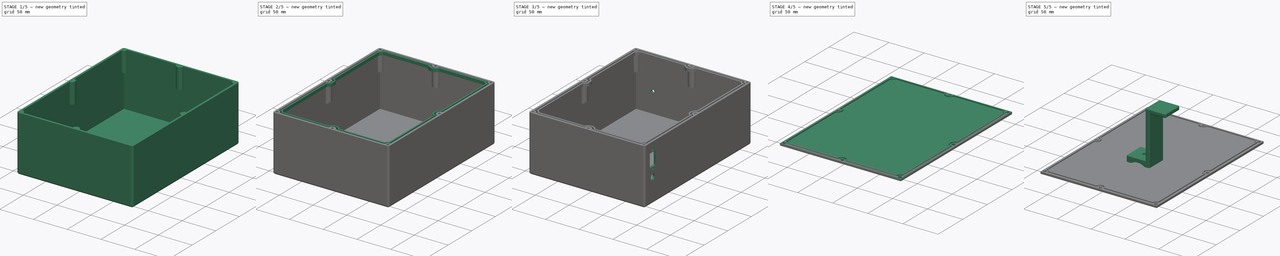
[diagram: build sequence overview — one tinted view per stage of 5, left to right]
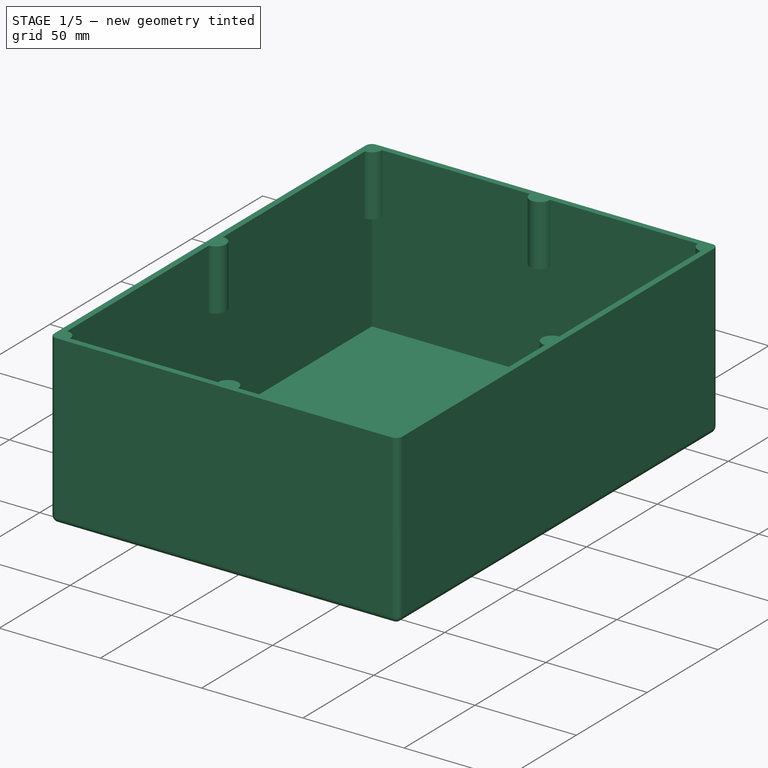
[diagram: stage 1 of 5 — iso view after this stage's code; geometry added in this stage tinted green]
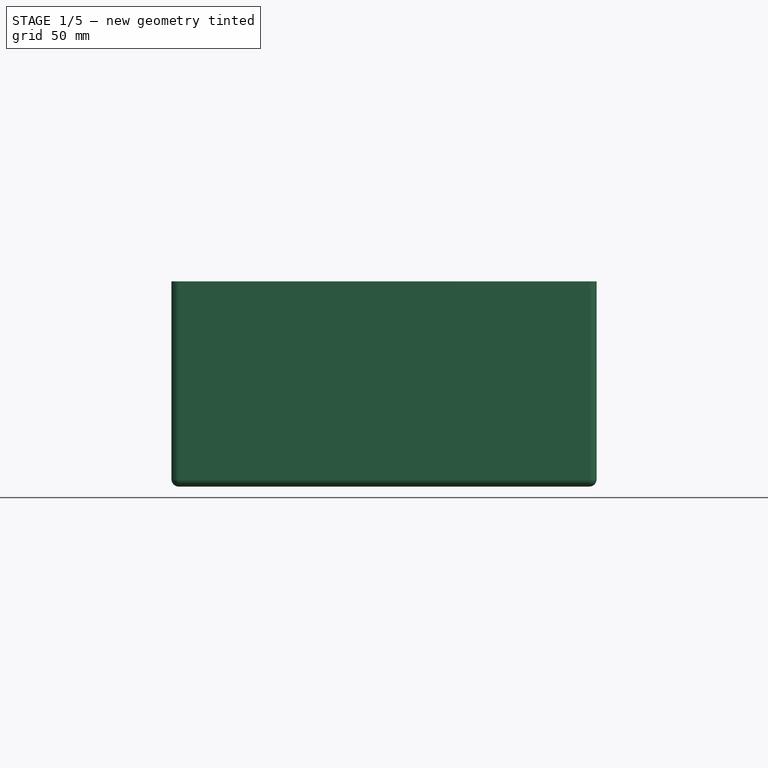
[diagram: stage 1 of 5 — front view after this stage's code; geometry added in this stage tinted green]
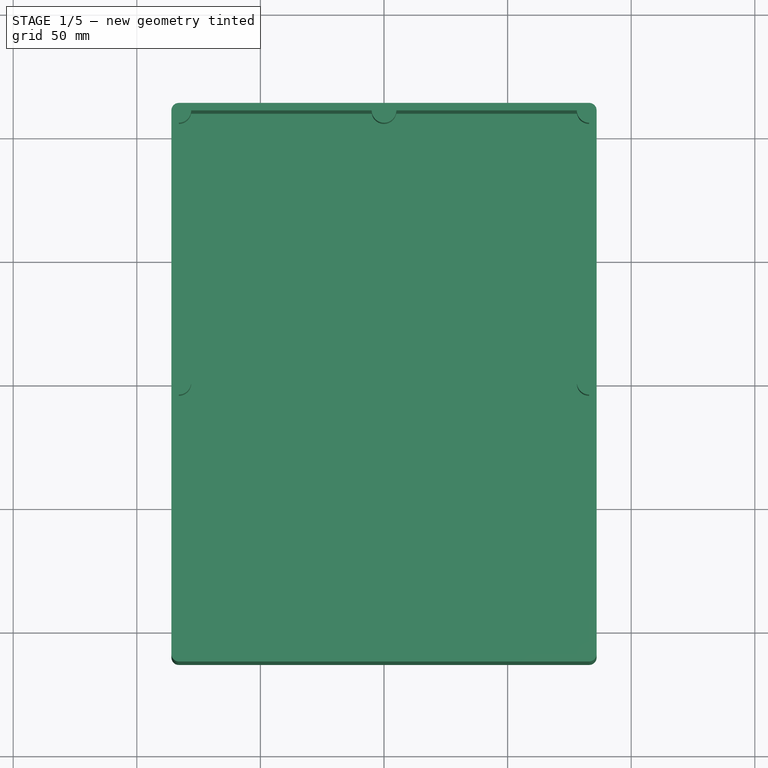
[diagram: stage 1 of 5 — top view after this stage's code; geometry added in this stage tinted green]
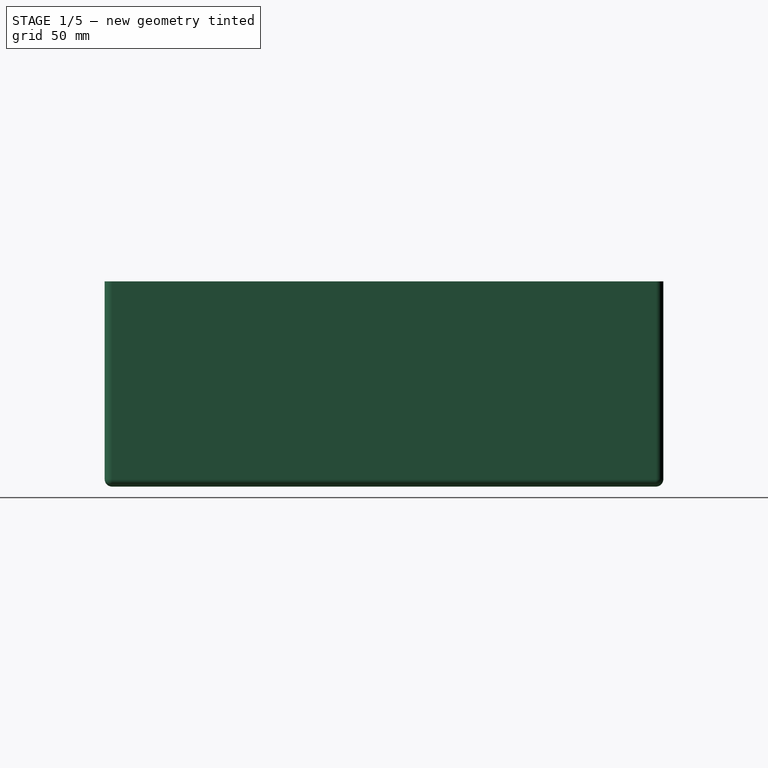
[diagram: stage 1 of 5 — right view after this stage's code; geometry added in this stage tinted green]
FCSTD DOCUMENT  (FreeCAD 1.0RUnknown)
Label: 10s8p
License: All rights reserved
LicenseURL: https://en.wikipedia.org/wiki/All_rights_reserved
objects: Sketcher::SketchObject×14, PartDesign::SubShapeBinder×5, PartDesign::Pad×4, PartDesign::Hole×3, PartDesign::Body×3, PartDesign::Pocket×3, App::VarSet×2, PartDesign::AdditivePipe×2, PartDesign::Thickness×1, PartDesign::Chamfer×1, PartDesign::SubtractivePipe×1
note: 81 computed .brp shape members not serialized (recipe doc carries the construction recipe); baked Part::Feature solids carry a one-line shape summary decoded from their .brp

FEATURE [App::VarSet] VarSet  label="dim"
  depth = 80
  external_width = 172
  height = 220
  lid_thk = 3
  thk = 3
  tol = 0.5
  width = 166
  expr: width = external_width - 2 * thk
FEATURE [Sketcher::SketchObject] Sketch002
  ArcFitTolerance = 1e-06
  AttachmentSupport = -> [XY_Plane]
  FullyConstrained = true
  MakeInternals = false
  MapMode = 5
  expr: Constraints[10] = VarSet.width
  expr: Constraints[11] = VarSet.height
  sketch-geometry (5):
    g0: LineSegment StartX=-83 StartY=110 StartZ=0 EndX=-83 EndY=-110 EndZ=0
    g1: LineSegment StartX=-83 StartY=-110 StartZ=0 EndX=83 EndY=-110 EndZ=0
    g2: LineSegment StartX=83 StartY=-110 StartZ=0 EndX=83 EndY=110 EndZ=0
    g3: LineSegment StartX=83 StartY=110 StartZ=0 EndX=-83 EndY=110 EndZ=0
    g4: GeomPoint [constr] X=0 Y=0 Z=0
  constraints (12):
    c: Coincident(g0,g1)
    c: Coincident(g1,g2)
    c: Coincident(g2,g3)
    c: Coincident(g3,g0)
    c: Vertical(g0)
    c: Vertical(g2)
    c: Horizontal(g1)
    c: Horizontal(g3)
    c: Symmetric(g2,g0,g4)
    c: Coincident(g4,g-1)
    c: DistanceX(g3,g3) = 166
    c: DistanceY(g2,g2) = 220
FEATURE [PartDesign::Pad] Pad
  Direction = (0,0,1)
  Length = 80
  Length2 = 10
  Profile = -> Sketch002
  ReferenceAxis = -> Sketch002 [N_Axis]
  Refine = true
  Suppressed = false
  Type = 0
  expr: Length = VarSet.depth
FEATURE [PartDesign::Thickness] Thickness
  Base = -> Pad [Face6]
  BaseFeature = -> Pad
  Intersection = false
  Join = 0
  Mode = 0
  Refine = true
  SupportTransform = false
  Suppressed = false
  Value = 3
  expr: Value = VarSet.thk
FEATURE [PartDesign::Body] Body002  label="bracket"
  AllowCompound = false
  Group = -> [Sketch003,Pad003,Sketch004,Hole,Chamfer001]
  Origin = -> Origin002
  Tip = -> Chamfer001
FEATURE [Sketcher::SketchObject] Sketch006
  ArcFitTolerance = 1e-06
  AttachmentOffset = pos=(0,0,80) rot=(0,0,1;0rad)
  AttachmentSupport = -> [XY_Plane]
  ExternalGeometry = -> [Sketch002]
  FullyConstrained = true
  MakeInternals = false
  MapMode = 5
  Placement = pos=(0,0,80) rot=(0,0,1;0rad)
  expr: .AttachmentOffset.Base.z = Pad.Length
  sketch-geometry (24):
    g0: ArcOfCircle CenterX=-83 CenterY=110 CenterZ=0 NormalX=0 NormalY=0 NormalZ=1 AngleXU=0 Radius=5 StartAngle=4.71239 EndAngle=6.28319
    g1: LineSegment StartX=-83 StartY=105 StartZ=0 EndX=-83 EndY=110 EndZ=0
    g2: LineSegment StartX=-83 StartY=110 StartZ=0 EndX=-78 EndY=110 EndZ=0
    g3: ArcOfCircle CenterX=83 CenterY=110 CenterZ=0 NormalX=0 NormalY=0 NormalZ=1 AngleXU=0 Radius=5 StartAngle=3.14159 EndAngle=4.71239
    g4: ArcOfCircle CenterX=-83 CenterY=-110 CenterZ=0 NormalX=0 NormalY=0 NormalZ=1 AngleXU=0 Radius=5 StartAngle=0 EndAngle=1.5708
    g5: ArcOfCircle CenterX=83 CenterY=-110 CenterZ=0 NormalX=0 NormalY=0 NormalZ=1 AngleXU=0 Radius=5 StartAngle=1.5708 EndAngle=3.14159
    g6: LineSegment StartX=-83 StartY=-110 StartZ=0 EndX=-83 EndY=-105 EndZ=0
    g7: LineSegment StartX=-83 StartY=-110 StartZ=0 EndX=-78 EndY=-110 EndZ=0
    g8: LineSegment StartX=78 StartY=-110 StartZ=0 EndX=83 EndY=-110 EndZ=0
    g9: LineSegment StartX=83 StartY=-110 StartZ=0 EndX=83 EndY=-105 EndZ=0
    g10: LineSegment StartX=83 StartY=110 StartZ=0 EndX=83 EndY=105 EndZ=0
    g11: LineSegment StartX=83 StartY=110 StartZ=0 EndX=78 EndY=110 EndZ=0
    g12: GeomPoint X=0 Y=-110 Z=0
    g13: GeomPoint X=0 Y=110 Z=0
    g14: GeomPoint X=-83 Y=0 Z=0
    g15: GeomPoint X=83 Y=0 Z=0
    g16: ArcOfCircle CenterX=0 CenterY=-110 CenterZ=0 NormalX=0 NormalY=0 NormalZ=1 AngleXU=0 Radius=5 StartAngle=8e-16 EndAngle=3.14159
    g17: ArcOfCircle CenterX=-83 CenterY=0 CenterZ=0 NormalX=0 NormalY=0 NormalZ=1 AngleXU=0 Radius=5 StartAngle=4.71239 EndAngle=7.85398
    g18: ArcOfCircle CenterX=83 CenterY=0 CenterZ=0 NormalX=0 NormalY=0 NormalZ=1 AngleXU=0 Radius=5 StartAngle=1.5708 EndAngle=4.71239
    g19: ArcOfCircle CenterX=0 CenterY=110 CenterZ=0 NormalX=0 NormalY=0 NormalZ=1 AngleXU=0 Radius=5 StartAngle=3.14159 EndAngle=6.28319
    g20: LineSegment StartX=-5 StartY=110 StartZ=0 EndX=5 EndY=110 EndZ=0
    g21: LineSegment StartX=83 StartY=5 StartZ=0 EndX=83 EndY=-5 EndZ=0
    g22: LineSegment StartX=-83 StartY=5 StartZ=0 EndX=-83 EndY=-5 EndZ=0
    g23: LineSegment StartX=-5 StartY=-110 StartZ=0 EndX=5 EndY=-110 EndZ=0
  constraints (64):
    c: Coincident(g0,g-3)
    c: Coincident(g2,g0)
    c: Coincident(g2,g0)
    c: Radius(g0) = 5
    c: Coincident(g1,g0)
    c: Coincident(g1,g0)
    c: Horizontal(g2)
    c: Vertical(g1)
    c: Coincident(g3,g-4)
    c: Coincident(g4,g-5)
    c: Coincident(g5,g-6)
    c: Coincident(g6,g4)
    c: Coincident(g6,g4)
    c: Coincident(g7,g4)
    c: Coincident(g7,g4)
    c: Coincident(g8,g5)
    c: Coincident(g8,g5)
    c: Horizontal(g8)
    c: Coincident(g9,g5)
    c: Coincident(g9,g5)
    c: Vertical(g9)
    c: Coincident(g10,g3)
    c: Coincident(g10,g3)
    c: Coincident(g11,g3)
    c: Coincident(g11,g3)
    c: Horizontal(g11)
    c: Vertical(g10)
    c: Vertical(g6)
    c: Horizontal(g7)
    c: Equal(g0,g3)
    c: Equal(g3,g5)
    c: Equal(g5,g4)
    c: PointOnObject(g12,g-2)
    c: PointOnObject(g13,g-2)
    c: PointOnObject(g14,g-1)
    c: Vertical(g14,g0)
    c: Vertical(g15,g3)
    c: Horizontal(g13,g0)
    c: Horizontal(g12,g4)
    c: Coincident(g16,g12)
    c: Coincident(g17,g14)
    c: PointOnObject(g18,g-1)
    c: Coincident(g19,g13)
    c: Coincident(g20,g19)
    c: Coincident(g20,g19)
    c: Horizontal(g20)
    c: Coincident(g21,g18)
    c: Coincident(g21,g18)
    c: Vertical(g21)
    c: Coincident(g22,g17)
    c: Coincident(g22,g17)
    c: Vertical(g22)
    c: Coincident(g23,g16)
    c: Coincident(g23,g16)
    c: Equal(g0,g19)
    c: Equal(g19,g18)
    c: Equal(g18,g17)
    c: Equal(g17,g16)
    c: Horizontal(g23)
    c: Horizontal(g16,g12)
    c: Vertical(g18,g15)
    c: Coincident(g15,g18)
    c: Horizontal(g19,g13)
    c: Vertical(g17,g14)
FEATURE [PartDesign::Pad] Pad004
  BaseFeature = -> Thickness
  Direction = (0,0,1)
  Length = 30
  Length2 = 10
  Profile = -> Sketch006
  ReferenceAxis = -> Sketch006 [N_Axis]
  Refine = true
  Reversed = true
  Suppressed = false
  Type = 0
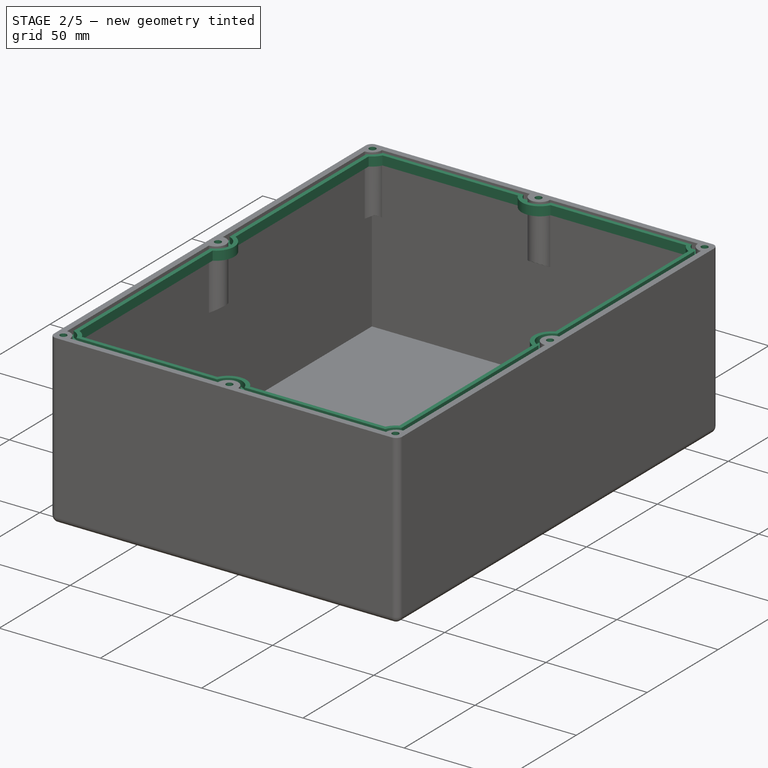
[diagram: stage 2 of 5 — iso view after this stage's code; geometry added in this stage tinted green]
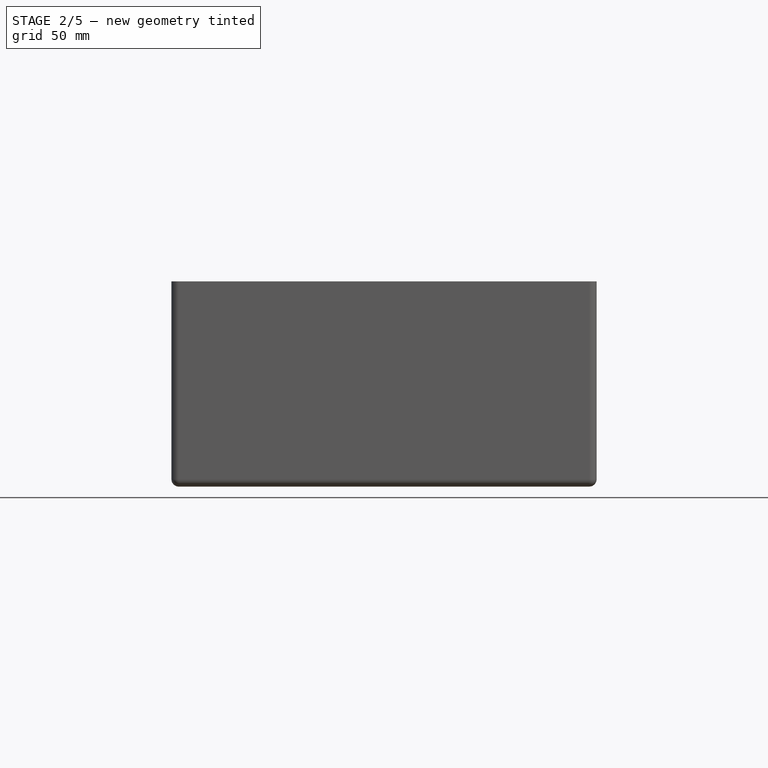
[diagram: stage 2 of 5 — front view after this stage's code; geometry added in this stage tinted green]
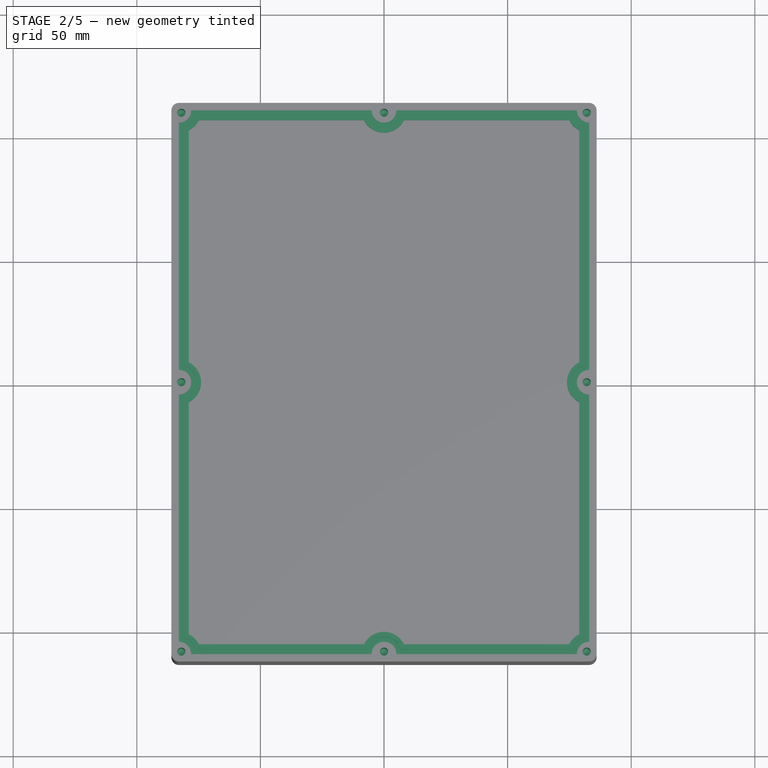
[diagram: stage 2 of 5 — top view after this stage's code; geometry added in this stage tinted green]
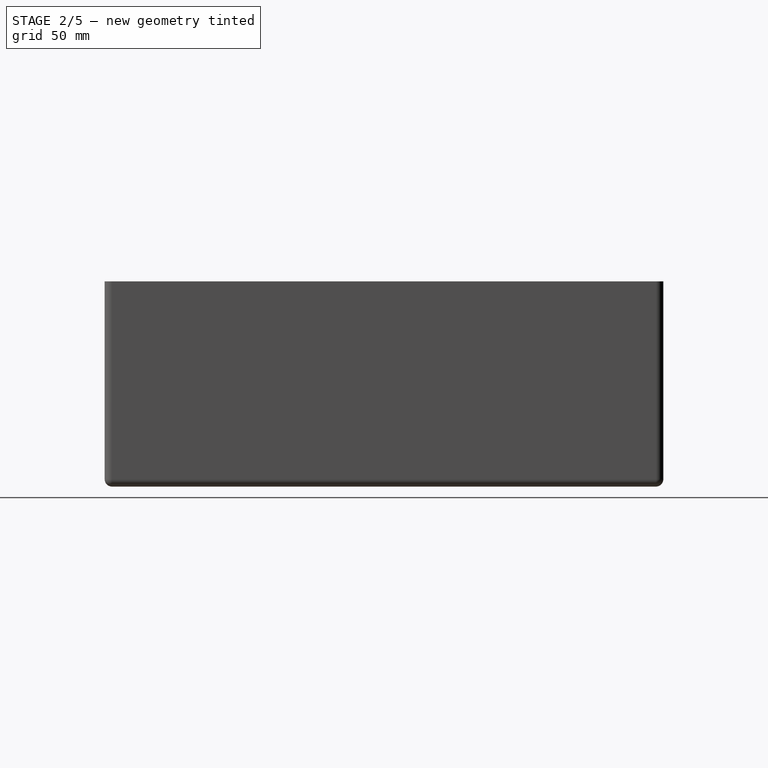
[diagram: stage 2 of 5 — right view after this stage's code; geometry added in this stage tinted green]
FEATURE [Sketcher::SketchObject] Sketch019
  ArcFitTolerance = 1e-06
  AttachmentSupport = -> [XZ_Plane,Sketch009]
  ExternalGeometry = -> [Pad004]
  FullyConstrained = true
  MakeInternals = false
  MapMode = 53
  Placement = pos=(0,-110,-2.44e-14) rot=(1,0,0;1.5708rad)
  sketch-geometry (3):
    g0: LineSegment StartX=-78 StartY=50 StartZ=0 EndX=-78 EndY=52.8868 EndZ=0
    g1: LineSegment StartX=-78 StartY=52.8868 StartZ=0 EndX=-83 EndY=50 EndZ=0
    g2: LineSegment StartX=-83 StartY=50 StartZ=0 EndX=-78 EndY=50 EndZ=0
  constraints (7):
    c: Coincident(g0,g-3)
    c: Vertical(g0)
    c: Coincident(g1,g0)
    c: Coincident(g1,g-3)
    c: Coincident(g2,g1)
    c: Coincident(g2,g0)
    c: Angle(g2,g1) = 0.523599
FEATURE [PartDesign::SubtractivePipe] SubtractivePipe001
  AuxilleryCurvelinear = true
  AuxillerySpineTangent = false
  BaseFeature = -> Pad004
  Binormal = (0,0,0)
  Mode = 0
  Profile = -> Sketch019
  Refine = true
  Spine = -> Sketch009
  SpineTangent = false
  Suppressed = false
  Transformation = 0
  Transition = 1
FEATURE [Sketcher::SketchObject] Sketch020
  ArcFitTolerance = 1e-06
  AttachmentSupport = -> [XY_Plane]
  ExternalGeometry = -> [Sketch002,Sketch006]
  FullyConstrained = true
  MakeInternals = false
  MapMode = 5
  sketch-geometry (16):
    g0: LineSegment StartX=-83 StartY=105 StartZ=0 EndX=-83 EndY=5 EndZ=0
    g1: LineSegment StartX=-83 StartY=-5 StartZ=0 EndX=-83 EndY=-105 EndZ=0
    g2: LineSegment StartX=-78 StartY=-110 StartZ=0 EndX=-5 EndY=-110 EndZ=0
    g3: LineSegment StartX=5 StartY=-110 StartZ=0 EndX=78 EndY=-110 EndZ=0
    g4: LineSegment StartX=83 StartY=-105 StartZ=0 EndX=83 EndY=-5 EndZ=0
    g5: LineSegment StartX=83 StartY=105 StartZ=0 EndX=83 EndY=5 EndZ=0
    g6: LineSegment StartX=78 StartY=110 StartZ=0 EndX=5 EndY=110 EndZ=0
    g7: LineSegment StartX=-5 StartY=110 StartZ=0 EndX=-78 EndY=110 EndZ=0
    g8: ArcOfCircle CenterX=-83 CenterY=110 CenterZ=0 NormalX=0 NormalY=0 NormalZ=1 AngleXU=0 Radius=5 StartAngle=4.71239 EndAngle=6.28319
    g9: ArcOfCircle CenterX=0 CenterY=110 CenterZ=0 NormalX=0 NormalY=0 NormalZ=1 AngleXU=0 Radius=5 StartAngle=3.14159 EndAngle=6.28319
    g10: ArcOfCircle CenterX=83 CenterY=110 CenterZ=0 NormalX=0 NormalY=0 NormalZ=1 AngleXU=0 Radius=5 StartAngle=3.14159 EndAngle=4.71239
    g11: ArcOfCircle CenterX=83 CenterY=0 CenterZ=0 NormalX=0 NormalY=0 NormalZ=1 AngleXU=0 Radius=5 StartAngle=1.5708 EndAngle=4.71239
    g12: ArcOfCircle CenterX=83 CenterY=-110 CenterZ=0 NormalX=0 NormalY=0 NormalZ=1 AngleXU=0 Radius=5 StartAngle=1.5708 EndAngle=3.14159
    g13: ArcOfCircle CenterX=0 CenterY=-110 CenterZ=0 NormalX=0 NormalY=0 NormalZ=1 AngleXU=0 Radius=5 StartAngle=2.6e-15 EndAngle=3.14159
    g14: ArcOfCircle CenterX=-83 CenterY=-110 CenterZ=0 NormalX=0 NormalY=0 NormalZ=1 AngleXU=0 Radius=5 StartAngle=2e-16 EndAngle=1.5708
    g15: ArcOfCircle CenterX=-83 CenterY=0 CenterZ=0 NormalX=0 NormalY=0 NormalZ=1 AngleXU=0 Radius=5 StartAngle=4.71239 EndAngle=7.85398
  constraints (40):
    c: Coincident(g0,g-14)
    c: Coincident(g0,g-13)
    c: Coincident(g1,g-13)
    c: Coincident(g1,g-11)
    c: Coincident(g2,g-11)
    c: Coincident(g2,g-10)
    c: Coincident(g3,g-10)
    c: Coincident(g3,g-8)
    c: Coincident(g4,g-8)
    c: Coincident(g4,g-7)
    c: Coincident(g5,g-5)
    c: Coincident(g5,g-7)
    c: Coincident(g6,g-5)
    c: Coincident(g6,g-4)
    c: Coincident(g7,g-4)
    c: Coincident(g7,g-14)
    c: Coincident(g8,g-14)
    c: Coincident(g8,g7)
    c: Coincident(g9,g-4)
    c: Coincident(g9,g7)
    c: Coincident(g10,g-6)
    c: Coincident(g10,g6)
    c: Coincident(g11,g-7)
    c: Coincident(g11,g5)
    c: Coincident(g12,g-9)
    c: Coincident(g12,g4)
    c: Coincident(g13,g-10)
    c: Coincident(g13,g2)
    c: PointOnObject(g8,g0)
    c: PointOnObject(g9,g6)
    c: PointOnObject(g10,g5)
    c: PointOnObject(g11,g4)
    c: PointOnObject(g12,g3)
    c: PointOnObject(g13,g3)
    c: Coincident(g14,g1)
    c: Coincident(g14,g-12)
    c: PointOnObject(g14,g2)
    c: Coincident(g15,g0)
    c: Coincident(g15,g-13)
    c: PointOnObject(g15,g1)
FEATURE [Sketcher::SketchObject] Sketch005
  ArcFitTolerance = 1e-06
  AttachmentSupport = -> [XZ_Plane,Sketch020]
  ExternalGeometry = -> [Thickness]
  FullyConstrained = true
  MakeInternals = false
  MapMode = 53
  Placement = pos=(0,-105,-2.33e-14) rot=(1,0,0;1.5708rad)
  sketch-geometry (6):
    g0: LineSegment StartX=-83 StartY=77 StartZ=0 EndX=-83 EndY=74.0441 EndZ=0
    g1: LineSegment StartX=-83 StartY=74.0441 StartZ=0 EndX=-79 EndY=75.5 EndZ=0
    g2: LineSegment StartX=-79 StartY=80 StartZ=0 EndX=-81 EndY=80 EndZ=0
    g3: LineSegment StartX=-79 StartY=80 StartZ=0 EndX=-79 EndY=75.5 EndZ=0
    g4: LineSegment StartX=-81 StartY=80 StartZ=0 EndX=-81 EndY=77 EndZ=0
    g5: LineSegment StartX=-83 StartY=77 StartZ=0 EndX=-81 EndY=77 EndZ=0
  constraints (18):
    c: Vertical(g0)
    c: Coincident(g0,g1)
    c: Vertical(g3)
    c: Distance(g3,g3) = 4.5
    c: Coincident(g1,g3)
    c: Coincident(g2,g3)
    c: Horizontal(g2)
    c: Vertical(g4)
    c: Coincident(g5,g4)
    c: Horizontal(g5)
    c: Coincident(g2,g4)
    c: Distance(g2,g-3) = 2
    c: Distance(g4,g4) = 3
    c: Distance(g2,g2) = 2
    c: Horizontal(g2,g-3)
    c: Vertical(g0,g-3)
    c: Coincident(g5,g0)
    c: Angle(g1,g0) = 1.22173
FEATURE [PartDesign::AdditivePipe] AdditivePipe
  AuxilleryCurvelinear = true
  AuxillerySpineTangent = false
  BaseFeature = -> SubtractivePipe001
  Binormal = (0,0,0)
  Mode = 0
  Profile = -> Sketch005
  Refine = true
  Spine = -> Sketch020
  SpineTangent = false
  Suppressed = false
  Transformation = 0
  Transition = 1
FEATURE [PartDesign::Hole] Hole001
  BaseFeature = -> AdditivePipe
  CustomThreadClearance = 0
  Depth = 25
  DepthType = 0
  Diameter = 3.3
  DrillForDepth = false
  DrillPoint = 1
  DrillPointAngle = 118
  HoleCutCountersinkAngle = 90
  HoleCutCustomValues = false
  HoleCutDepth = 0
  HoleCutDiameter = 6.1
  HoleCutType = 0
  ModelThread = false
  Profile = -> Sketch007
  Refine = true
  Suppressed = false
  Tapered = false
  TaperedAngle = 90
  ThreadClass = 0
  ThreadDepth = 25
  ThreadDepthType = 0
  ThreadDirection = 0
  ThreadFit = 0
  ThreadSize = 11
  ThreadType = 1
  Threaded = true
  UseCustomThreadClearance = false
  expr: Depth = Pad004.Length - 5 mm
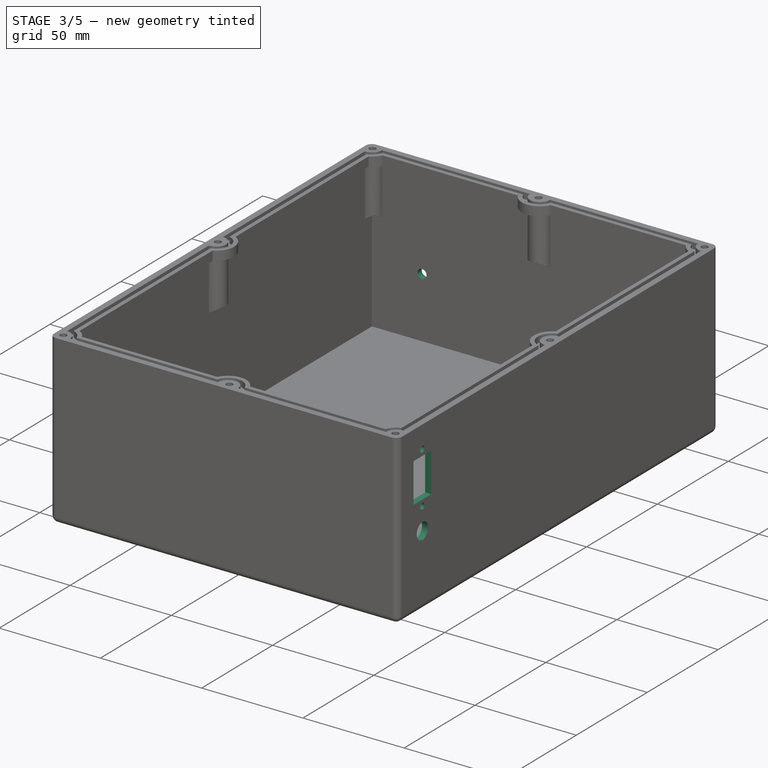
[diagram: stage 3 of 5 — iso view after this stage's code; geometry added in this stage tinted green]
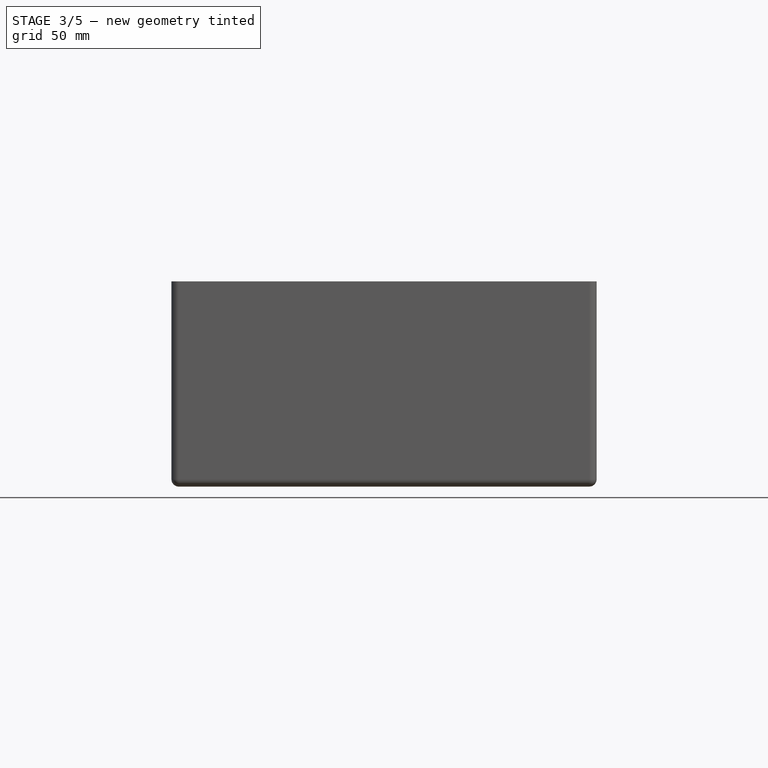
[diagram: stage 3 of 5 — front view after this stage's code; geometry added in this stage tinted green]
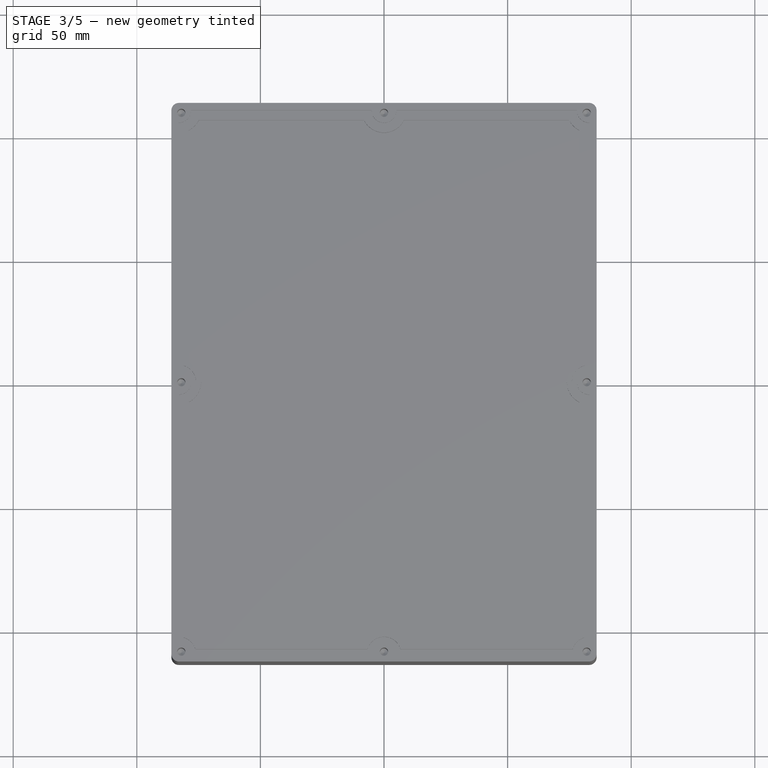
[diagram: stage 3 of 5 — top view after this stage's code; geometry added in this stage tinted green]
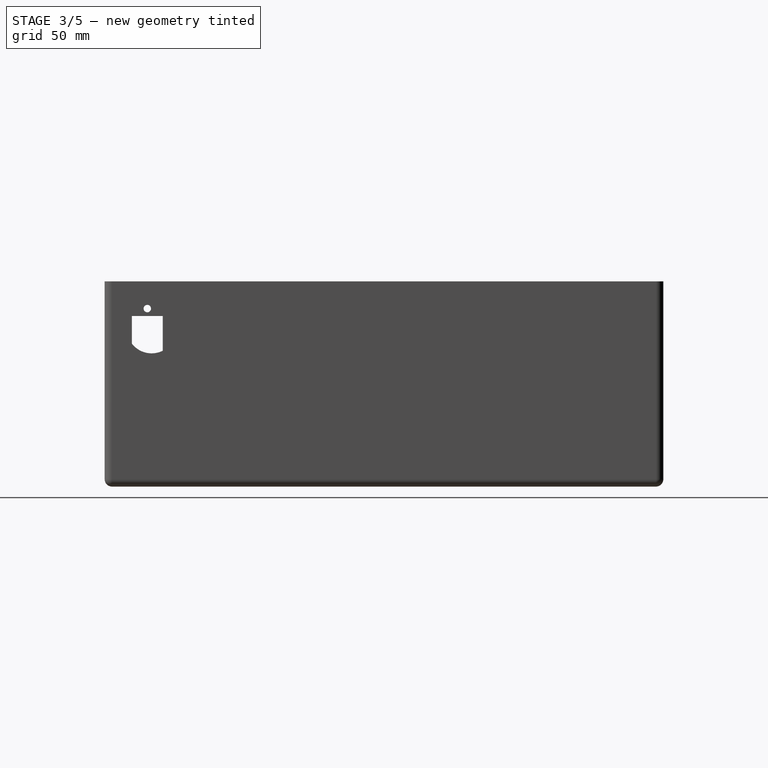
[diagram: stage 3 of 5 — right view after this stage's code; geometry added in this stage tinted green]
FEATURE [Sketcher::SketchObject] Sketch011
  ArcFitTolerance = 1e-06
  AttachmentSupport = -> [Hole001]
  ExternalGeometry = -> [Pad,Sketch005]
  FullyConstrained = true
  MakeInternals = false
  MapMode = 5
  Placement = pos=(86,0,0) rot=(0.57735,0.57735,0.57735;2.0944rad)
  sketch-geometry (12):
    g0: Circle CenterX=-95.75 CenterY=32.5 CenterZ=0 NormalX=0 NormalY=0 NormalZ=1 AngleXU=0 Radius=4
    g1: Circle CenterX=-95.75 CenterY=69 CenterZ=0 NormalX=0 NormalY=0 NormalZ=1 AngleXU=0 Radius=1.5
    g2: Circle CenterX=-95.75 CenterY=43.5 CenterZ=0 NormalX=0 NormalY=0 NormalZ=1 AngleXU=0 Radius=1.5
    g3: LineSegment StartX=-102 StartY=66 StartZ=0 EndX=-102 EndY=46.5 EndZ=0
    g4: LineSegment StartX=-102 StartY=46.5 StartZ=0 EndX=-89.5 EndY=46.5 EndZ=0
    g5: LineSegment StartX=-89.5 StartY=46.5 StartZ=0 EndX=-89.5 EndY=66 EndZ=0
    g6: LineSegment StartX=-89.5 StartY=66 StartZ=0 EndX=-102 EndY=66 EndZ=0
    g7: GeomPoint X=-95.75 Y=66 Z=0
    g8: GeomPoint X=-95.75 Y=56.25 Z=0
    g9: GeomPoint X=-95.75 Y=36.5 Z=0
    g10: GeomPoint X=-95.75 Y=28.5 Z=0
    g11: GeomPoint X=-95.75 Y=70.5 Z=0
  constraints (30):
    c: Diameter(g0) = 8
    c: Equal(g1,g2)
    c: Vertical(g2,g1)
    c: Diameter(g1) = 3
    c: Coincident(g3,g4)
    c: Coincident(g4,g5)
    c: Coincident(g5,g6)
    c: Coincident(g6,g3)
    c: Vertical(g3)
    c: Vertical(g5)
    c: Horizontal(g4)
    c: Horizontal(g6)
    c: Symmetric(g6,g6,g7)
    c: Symmetric(g5,g3,g8)
    c: Symmetric(g1,g2,g8)
    c: DistanceY(g7,g1) = 3
    c: Distance(g6,g6) = 12.5
    c: DistanceY(g3,g3) = 19.5
    c: DistanceX(g-3,g3) = 8
    c: DistanceY(g3,g-3) = 14
    c: Vertical(g0,g2)
    c: PointOnObject(g9,g0)
    c: Vertical(g9,g0)
    c: DistanceY(g9,g3) = 10
    c: PointOnObject(g10,g0)
    c: Vertical(g9,g10)
    c: DistanceX(g-3,g5) = 20.5
    c: PointOnObject(g11,g1)
    c: Vertical(g11,g1)
    c: DistanceY(g11,g-4) = 3.54412
FEATURE [PartDesign::Pocket] Pocket  label="connector-Pocket"
  BaseFeature = -> Hole001
  Direction = (-1,0,0)
  Length = 5
  Length2 = 5
  Profile = -> Sketch011
  ReferenceAxis = -> Sketch011 [N_Axis]
  Refine = true
  Suppressed = false
  Type = 2
FEATURE [Sketcher::SketchObject] Sketch012
  ArcFitTolerance = 1e-06
  AttachmentSupport = -> [Pocket]
  FullyConstrained = true
  MakeInternals = false
  MapMode = 5
  Placement = pos=(0,113,0) rot=(0,0.707107,0.707107;3.14159rad)
  expr: Constraints[1] = 116.5
  sketch-geometry (2):
    g0: Circle CenterX=-58.25 CenterY=30 CenterZ=0 NormalX=0 NormalY=0 NormalZ=1 AngleXU=0 Radius=2.25
    g1: Circle CenterX=58.25 CenterY=30 CenterZ=0 NormalX=0 NormalY=0 NormalZ=1 AngleXU=0 Radius=2.25
  constraints (5):
    c: Symmetric(g1,g0,g-2)
    c: DistanceX(g0,g1) = 116.5
    c: Distance(g0,g-1) = 30
    c: Equal(g1,g0)
    c: Diameter(g0) = 4.5
FEATURE [Sketcher::SketchObject] Sketch021
  ArcFitTolerance = 1e-06
  AttachmentSupport = -> [Hole001]
  ExternalGeometry = -> [Pad,Sketch005]
  FullyConstrained = true
  MakeInternals = false
  MapMode = 5
  Placement = pos=(-86,0,0) rot=(0.57735,-0.57735,-0.57735;2.0944rad)
  sketch-geometry (6):
    g0: Circle CenterX=94 CenterY=60.95 CenterZ=0 NormalX=0 NormalY=0 NormalZ=1 AngleXU=0 Radius=10.05
    g1: GeomPoint X=94 Y=71 Z=0
    g2: GeomPoint X=104.05 Y=60.95 Z=0
    g3: GeomPoint X=94 Y=50.9 Z=0
    g4: GeomPoint X=104.05 Y=60.95 Z=0
    g5: GeomPoint X=83.95 Y=60.95 Z=0
  constraints (19):
    c: Diameter(g0) = 20.1
    c: PointOnObject(g1,g0)
    c: Vertical(g1,g0)
    c: PointOnObject(g2,g0)
    c: Horizontal(g2,g0)
    c: PointOnObject(g3,g0)
    c: Vertical(g3,g1)
    c: DistanceY(g3,g-3) = 29.1
    c: PointOnObject(g4,g0)
    c: Horizontal(g4,g0)
    c: DistanceX(g-3,g4) = -5.95
    c: DistanceX(g-3,g2) = -5.95
    c: DistanceY(g-1,g3) = 50.9
    c: DistanceY(g1,g-3) = 9
    c: DistanceX(g1,g-3) = 16
    c: DistanceY(g1,g-4) = 3.04412
    c: PointOnObject(g5,g0)
    c: Horizontal(g0,g5)
    c: DistanceX(g5,g-3) = 26.05
FEATURE [PartDesign::Pocket] Pocket002  label="switch-Pocket"
  BaseFeature = -> Pocket
  Direction = (1,0,0)
  Length = 5
  Length2 = 5
  Profile = -> Sketch021
  ReferenceAxis = -> Sketch021 [N_Axis]
  Refine = true
  Suppressed = false
  Type = 2
FEATURE [PartDesign::Pocket] Pocket001  label="handle-Pocket001"
  BaseFeature = -> Pocket002
  Direction = (0,-1,2e-16)
  Length = 9
  Length2 = 5
  Profile = -> Sketch012
  ReferenceAxis = -> Sketch012 [N_Axis]
  Refine = true
  Suppressed = false
  Type = 0
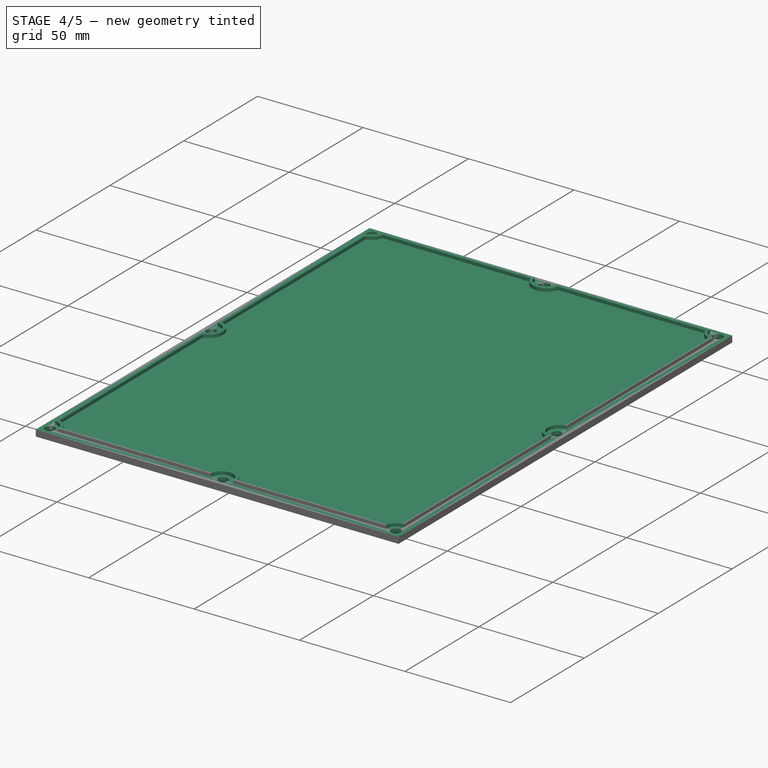
[diagram: stage 4 of 5 — iso view after this stage's code; geometry added in this stage tinted green]
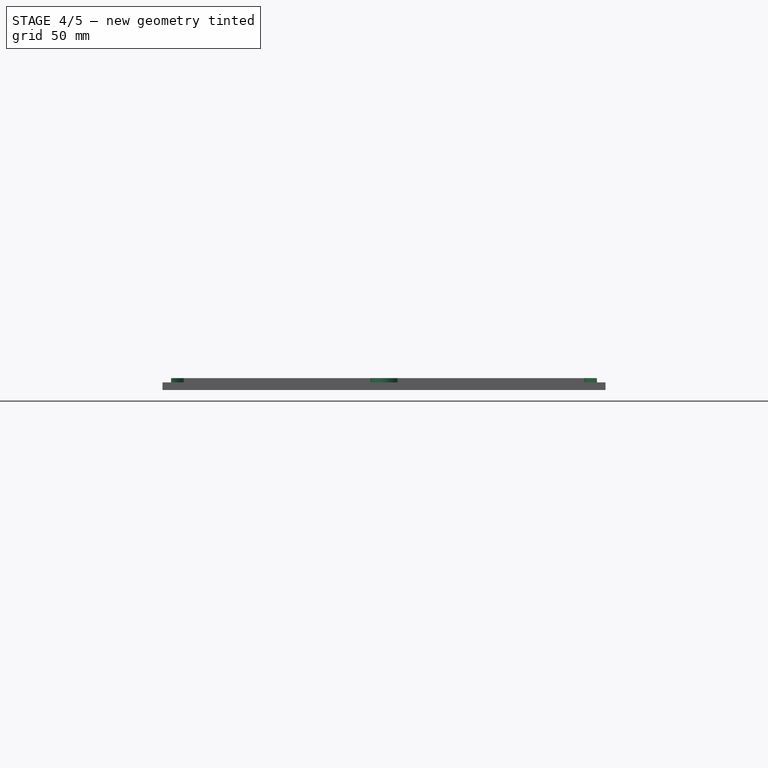
[diagram: stage 4 of 5 — front view after this stage's code; geometry added in this stage tinted green]
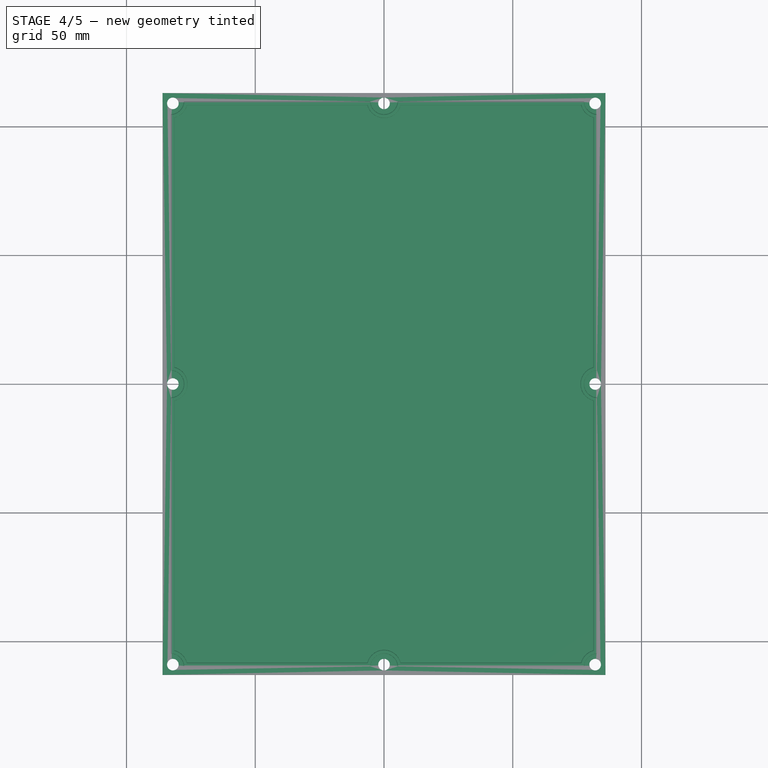
[diagram: stage 4 of 5 — top view after this stage's code; geometry added in this stage tinted green]
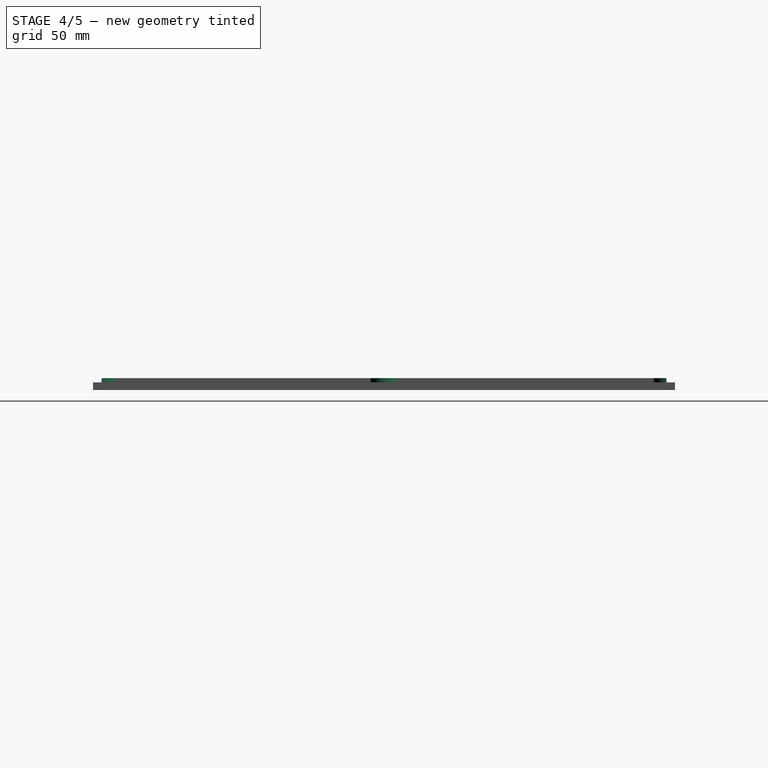
[diagram: stage 4 of 5 — right view after this stage's code; geometry added in this stage tinted green]
FEATURE [Sketcher::SketchObject] Sketch
  ArcFitTolerance = 1e-06
  AttachmentSupport = -> [XY_Plane001]
  FullyConstrained = true
  MakeInternals = false
  MapMode = 5
  expr: Constraints[11] = VarSet.width + 2 * VarSet.thk
  expr: Constraints[12] = VarSet.height + 2 * VarSet.thk
  sketch-geometry (6):
    g0: GeomPoint [constr] X=0 Y=0 Z=0
    g1: LineSegment StartX=-86 StartY=113 StartZ=0 EndX=-86 EndY=-113 EndZ=0
    g2: LineSegment StartX=-86 StartY=-113 StartZ=0 EndX=86 EndY=-113 EndZ=0
    g3: LineSegment StartX=86 StartY=-113 StartZ=0 EndX=86 EndY=113 EndZ=0
    g4: LineSegment StartX=86 StartY=113 StartZ=0 EndX=-86 EndY=113 EndZ=0
    g5: GeomPoint [constr] X=0 Y=0 Z=0
  constraints (13):
    c: Coincident(g0,g-1)
    c: Coincident(g1,g2)
    c: Coincident(g2,g3)
    c: Coincident(g3,g4)
    c: Coincident(g4,g1)
    c: Vertical(g1)
    c: Vertical(g3)
    c: Horizontal(g2)
    c: Horizontal(g4)
    c: Symmetric(g3,g1,g5)
    c: Coincident(g5,g0)
    c: DistanceX(g4,g4) = 172
    c: DistanceY(g1,g1) = 226
FEATURE [PartDesign::Pad] Pad001
  Direction = (0,0,1)
  Length = 3
  Length2 = 10
  Profile = -> Sketch [Edge4,Edge3,Edge1,Edge2]
  ReferenceAxis = -> Sketch [N_Axis]
  Refine = true
  Suppressed = false
  Type = 0
  expr: Length = VarSet.lid_thk
FEATURE [Sketcher::SketchObject] Sketch007
  ArcFitTolerance = 1e-06
  AttachmentOffset = pos=(0,0,80) rot=(0,0,1;0rad)
  AttachmentSupport = -> [XY_Plane]
  ExternalGeometry = -> [Sketch006]
  FullyConstrained = true
  MakeInternals = false
  MapMode = 5
  Placement = pos=(0,0,80) rot=(0,0,1;0rad)
  expr: .AttachmentOffset.Base.z = Pad.Length
  sketch-geometry (13):
    g0: LineSegment [constr] StartX=82 StartY=-109 StartZ=0 EndX=82 EndY=109 EndZ=0
    g1: LineSegment [constr] StartX=82 StartY=109 StartZ=0 EndX=-82 EndY=109 EndZ=0
    g2: LineSegment [constr] StartX=-82 StartY=109 StartZ=0 EndX=-82 EndY=-109 EndZ=0
    g3: LineSegment [constr] StartX=-82 StartY=-109 StartZ=0 EndX=82 EndY=-109 EndZ=0
    g4: GeomPoint [constr] X=0 Y=0 Z=0
    g5: Circle CenterX=-82 CenterY=-1.3522e-12 CenterZ=0 NormalX=0 NormalY=0 NormalZ=1 AngleXU=0 Radius=1.5
    g6: Circle CenterX=-82 CenterY=109 CenterZ=0 NormalX=0 NormalY=0 NormalZ=1 AngleXU=0 Radius=1.5
    g7: Circle CenterX=-1.0551e-12 CenterY=109 CenterZ=0 NormalX=0 NormalY=0 NormalZ=1 AngleXU=0 Radius=1.5
    g8: Circle CenterX=82 CenterY=109 CenterZ=0 NormalX=0 NormalY=0 NormalZ=1 AngleXU=0 Radius=1.5
    g9: Circle CenterX=82 CenterY=-1.3522e-12 CenterZ=0 NormalX=0 NormalY=0 NormalZ=1 AngleXU=0 Radius=1.5
    g10: Circle CenterX=82 CenterY=-109 CenterZ=0 NormalX=0 NormalY=0 NormalZ=1 AngleXU=0 Radius=1.5
    g11: Circle CenterX=-1.0551e-12 CenterY=-109 CenterZ=0 NormalX=0 NormalY=0 NormalZ=1 AngleXU=0 Radius=1.5
    g12: Circle CenterX=-82 CenterY=-109 CenterZ=0 NormalX=0 NormalY=0 NormalZ=1 AngleXU=0 Radius=1.5
  constraints (28):
    c: Coincident(g0,g1)
    c: Coincident(g1,g2)
    c: Coincident(g2,g3)
    c: Coincident(g3,g0)
    c: Vertical(g0)
    c: Vertical(g2)
    c: Horizontal(g1)
    c: Horizontal(g3)
    c: Symmetric(g2,g0,g4)
    c: Coincident(g4,g-1)
    c: DistanceY(g1,g-6) = 1
    c: DistanceX(g-6,g1) = 1
    c: Symmetric(g2,g2,g5)
    c: Coincident(g6,g1)
    c: Symmetric(g1,g1,g7)
    c: Coincident(g8,g0)
    c: Symmetric(g0,g0,g9)
    c: Coincident(g10,g0)
    c: Symmetric(g3,g3,g11)
    c: Coincident(g12,g2)
    c: Equal(g6,g7)
    c: Equal(g7,g8)
    c: Equal(g8,g9)
    c: Equal(g9,g10)
    c: Equal(g10,g11)
    c: Equal(g11,g12)
    c: Equal(g12,g5)
    c: Diameter(g6) = 3
FEATURE [Sketcher::SketchObject] Sketch009
  ArcFitTolerance = 1e-06
  AttachmentSupport = -> [XY_Plane]
  ExternalGeometry = -> [Sketch002]
  FullyConstrained = true
  MakeInternals = false
  MapMode = 5
  sketch-geometry (5):
    g0: LineSegment StartX=83 StartY=-110 StartZ=0 EndX=83 EndY=110 EndZ=0
    g1: LineSegment StartX=83 StartY=110 StartZ=0 EndX=-83 EndY=110 EndZ=0
    g2: LineSegment StartX=-83 StartY=110 StartZ=0 EndX=-83 EndY=-110 EndZ=0
    g3: LineSegment StartX=-83 StartY=-110 StartZ=0 EndX=83 EndY=-110 EndZ=0
    g4: GeomPoint [constr] X=0 Y=0 Z=0
  constraints (11):
    c: Coincident(g0,g1)
    c: Coincident(g1,g2)
    c: Coincident(g2,g3)
    c: Coincident(g3,g0)
    c: Vertical(g0)
    c: Vertical(g2)
    c: Horizontal(g1)
    c: Horizontal(g3)
    c: Symmetric(g2,g0,g4)
    c: Coincident(g4,g-1)
    c: Coincident(g1,g-3)
FEATURE [PartDesign::SubShapeBinder] Binder
  BindCopyOnChange = 0
  BindMode = 0
  ClaimChildren = false
  Context = -> Body001 [Hole002.Binder.]
  Fuse = false
  MakeFace = true
  OffsetFill = false
  OffsetIntersection = false
  OffsetJoinType = 0
  OffsetOpenResult = false
  PartialLoad = false
  Placement = pos=(0,0,-80) rot=(0,0,1;0rad)
  Refine = true
  Relative = true
  Support = -> [Body[Sketch007.]]
  _Version = 2
FEATURE [PartDesign::Hole] Hole002
  BaseFeature = -> Pad001
  CustomThreadClearance = 0
  Depth = 25
  DepthType = 0
  Diameter = 4.5
  DrillForDepth = false
  DrillPoint = 1
  DrillPointAngle = 118
  HoleCutCountersinkAngle = 90
  HoleCutCustomValues = false
  HoleCutDepth = 0
  HoleCutDiameter = 7.2
  HoleCutType = 2
  ModelThread = false
  Profile = -> Binder
  Refine = true
  Reversed = true
  Suppressed = false
  Tapered = false
  TaperedAngle = 90
  ThreadClass = 0
  ThreadDepth = 25
  ThreadDepthType = 0
  ThreadDirection = 0
  ThreadFit = 0
  ThreadSize = 11
  ThreadType = 1
  Threaded = false
  UseCustomThreadClearance = false
FEATURE [PartDesign::Body] Body  label="case"
  AllowCompound = false
  Group = -> [Sketch002,Pad,Thickness,Sketch006,Pad004,Sketch005,Sketch007,Sketch019,Sketch009,SubtractivePipe001,Sketch020,AdditivePipe,Hole001,Sketch011,Pocket,Sketch012,Sketch021,Pocket002,Pocket001]
  Origin = -> Origin
  Tip = -> Pocket001
FEATURE [PartDesign::SubShapeBinder] Binder001
  BindCopyOnChange = 0
  BindMode = 0
  ClaimChildren = false
  Context = -> Body001 [Binder001.]
  Fuse = false
  MakeFace = true
  OffsetFill = false
  OffsetIntersection = false
  OffsetJoinType = 0
  OffsetOpenResult = false
  PartialLoad = false
  Refine = true
  Relative = true
  Support = -> [Body[Pocket001.Face3,Pocket001.Face110]]
  _Version = 2
FEATURE [PartDesign::SubShapeBinder] Binder002
  BindCopyOnChange = 0
  BindMode = 0
  ClaimChildren = false
  Context = -> Body001 [Binder002.]
  Fuse = false
  MakeFace = false
  OffsetFill = false
  OffsetIntersection = false
  OffsetJoinType = 0
  OffsetOpenResult = false
  PartialLoad = false
  Refine = true
  Relative = true
  Support = -> [Body[Sketch020.]]
  _Version = 2
FEATURE [PartDesign::SubShapeBinder] Binder003
  BindCopyOnChange = 0
  BindMode = 0
  ClaimChildren = false
  Context = -> Body001 [Binder003.]
  Fuse = false
  MakeFace = true
  OffsetFill = false
  OffsetIntersection = false
  OffsetJoinType = 0
  OffsetOpenResult = false
  PartialLoad = false
  Placement = pos=(0,0,-71) rot=(0,0,1;0rad)
  Refine = true
  Relative = true
  Support = -> [Body[Sketch005.]]
  _Version = 2
FEATURE [PartDesign::SubShapeBinder] Binder004
  BindCopyOnChange = 0
  BindMode = 0
  ClaimChildren = false
  Context = -> Body001 [Binder004.]
  Fuse = false
  MakeFace = true
  OffsetFill = false
  OffsetIntersection = false
  OffsetJoinType = 0
  OffsetOpenResult = false
  PartialLoad = false
  Placement = pos=(0,0,-69) rot=(0,0,1;0rad)
  Refine = true
  Relative = true
  Support = -> [Body[AdditivePipe.Face35]]
  _Version = 2
FEATURE [Sketcher::SketchObject] Sketch022
  ArcFitTolerance = 1e-06
  AttachmentSupport = -> [YZ_Plane001,Binder002]
  ExternalGeometry = -> [Hole002,Binder004]
  FullyConstrained = true
  MakeInternals = false
  MapMode = 53
  Placement = pos=(-78,8.7e-15,-8.7e-15) rot=(0.57735,0.57735,0.57735;2.0944rad)
  sketch-geometry (8):
    g0: LineSegment StartX=-109.7 StartY=3 StartZ=0 EndX=-109.7 EndY=4.4 EndZ=0
    g1: LineSegment StartX=-109.4 StartY=4.7 StartZ=0 EndX=-108.6 EndY=4.7 EndZ=0
    g2: LineSegment StartX=-108.3 StartY=4.4 StartZ=0 EndX=-108.3 EndY=3 EndZ=0
    g3: LineSegment StartX=-108.3 StartY=3 StartZ=0 EndX=-109.7 EndY=3 EndZ=0
    g4: ArcOfCircle CenterX=-109.4 CenterY=4.4 CenterZ=0 NormalX=0 NormalY=0 NormalZ=1 AngleXU=0 Radius=0.3 StartAngle=1.5708 EndAngle=3.14159
    g5: GeomPoint [constr] X=-109.7 Y=4.7 Z=0
    g6: ArcOfCircle CenterX=-108.6 CenterY=4.4 CenterZ=0 NormalX=0 NormalY=0 NormalZ=1 AngleXU=0 Radius=0.3 StartAngle=9e-16 EndAngle=1.5708
    g7: GeomPoint [constr] X=-108.3 Y=4.7 Z=0
  constraints (21):
    c: Vertical(g0)
    c: Horizontal(g1)
    c: Vertical(g2)
    c: Coincident(g2,g3)
    c: Coincident(g3,g0)
    c: Horizontal(g3)
    c: PointOnObject(g0,g-6)
    c: DistanceX(g-5,g5) = 0.3
    c: DistanceX(g7,g-4) = 0.3
    c: DistanceY(g0,g5) = 1.7
    c: DistanceX(g5,g7) = 1.4
    c: PointOnObject(g5,g0)
    c: PointOnObject(g5,g1)
    c: Tangent(g0,g4) = 1.5708
    c: Tangent(g1,g4) = 1.5708
    c: PointOnObject(g7,g1)
    c: PointOnObject(g7,g2)
    c: Tangent(g1,g6) = 1.5708
    c: Tangent(g2,g6) = 1.5708
    c: Radius(g4) = 0.3
    c: Equal(g6,g4)
FEATURE [PartDesign::AdditivePipe] AdditivePipe001
  AuxilleryCurvelinear = true
  AuxillerySpineTangent = false
  BaseFeature = -> Hole002
  Binormal = (0,0,0)
  Mode = 0
  Profile = -> Sketch022
  Refine = true
  Spine = -> Binder002
  SpineTangent = false
  Suppressed = false
  Transformation = 0
  Transition = 1
FEATURE [PartDesign::Body] Body001  label="lid"
  AllowCompound = false
  Group = -> [Sketch,Pad001,Binder,Hole002,Binder001,Binder002,Binder003,Binder004,Sketch022,AdditivePipe001]
  Origin = -> Origin001
  Tip = -> AdditivePipe001
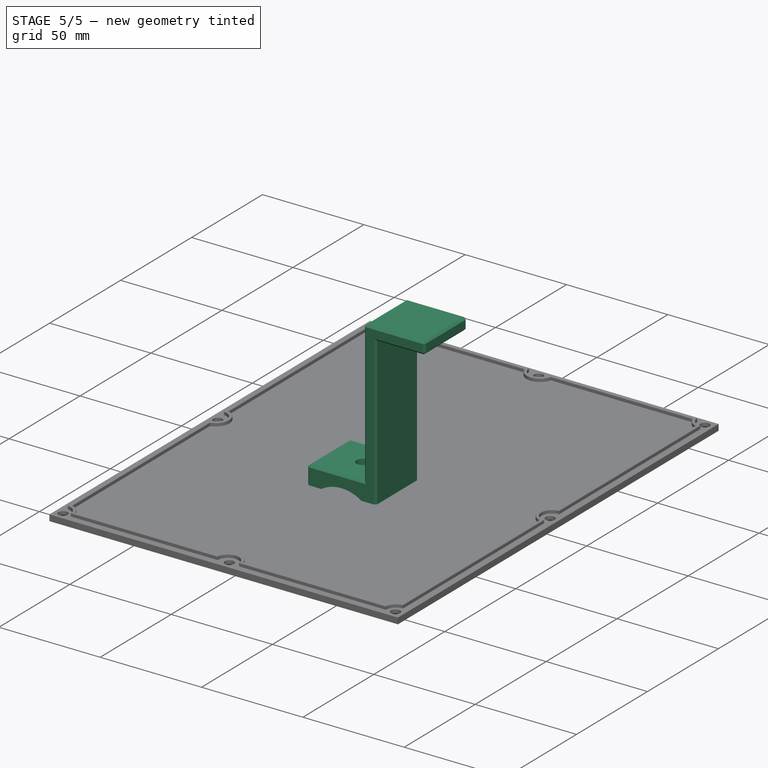
[diagram: stage 5 of 5 — iso view after this stage's code; geometry added in this stage tinted green]
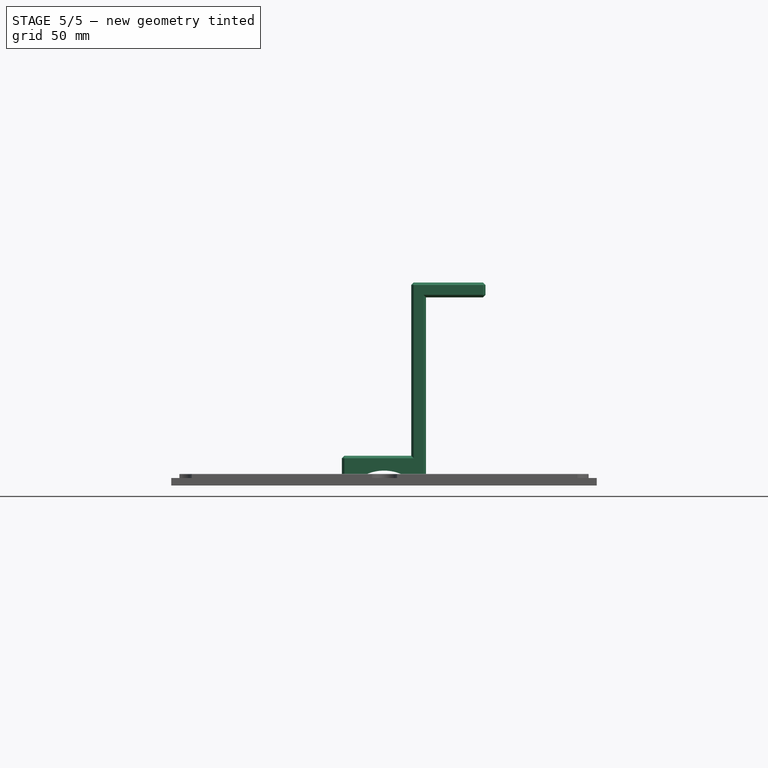
[diagram: stage 5 of 5 — front view after this stage's code; geometry added in this stage tinted green]
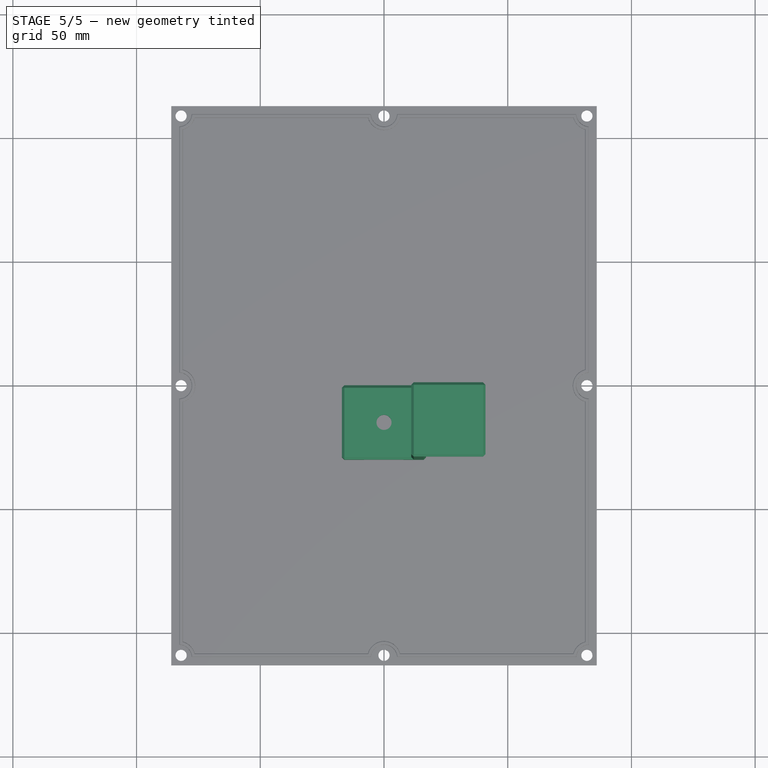
[diagram: stage 5 of 5 — top view after this stage's code; geometry added in this stage tinted green]
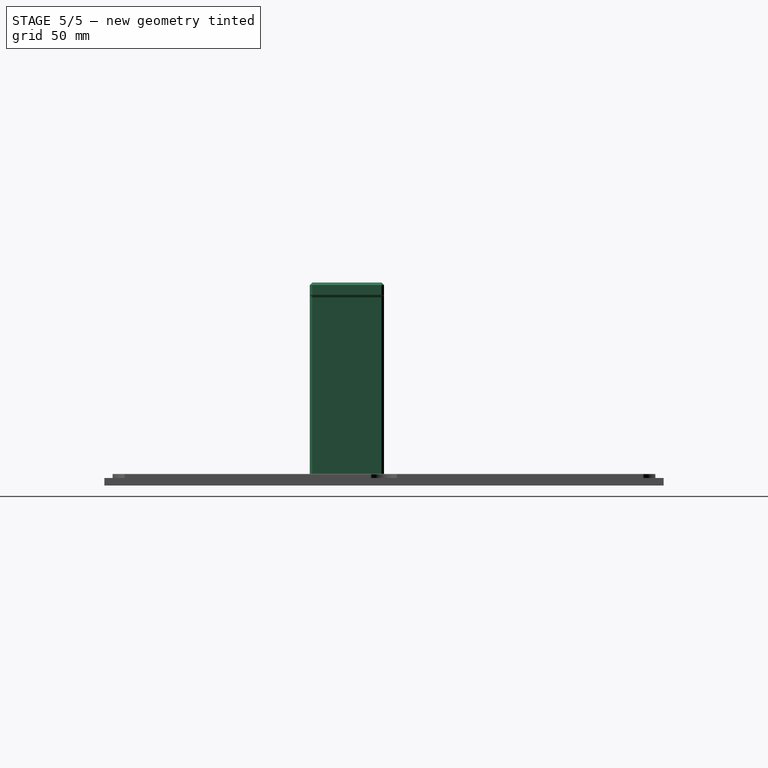
[diagram: stage 5 of 5 — right view after this stage's code; geometry added in this stage tinted green]
FEATURE [Sketcher::SketchObject] Sketch003
  ArcFitTolerance = 1e-06
  AttachmentSupport = -> [XZ_Plane002]
  FullyConstrained = true
  MakeInternals = false
  MapMode = 5
  Placement = pos=(0,0,0) rot=(1,0,0;1.5708rad)
  expr: Constraints[17] = <<bracket001>>.thk
  expr: Constraints[18] = <<bracket001>>.thk
  expr: Constraints[19] = <<bracket001>>.height
  expr: Constraints[20] = <<bracket001>>.thk
  expr: Constraints[31] = <<bracket001>>.hole_dist
  sketch-geometry (11):
    g0: ArcOfCircle CenterX=0 CenterY=-11.75 CenterZ=0 NormalX=0 NormalY=0 NormalZ=1 AngleXU=0 Radius=17.75 StartAngle=0.723446 EndAngle=2.41815
    g1: LineSegment StartX=-17 StartY=-1.8e-15 StartZ=0 EndX=-17 EndY=12 EndZ=0
    g2: LineSegment StartX=-17 StartY=12 StartZ=0 EndX=11 EndY=12 EndZ=0
    g3: LineSegment StartX=11 StartY=12 StartZ=0 EndX=11 EndY=82 EndZ=0
    g4: LineSegment StartX=11 StartY=82 StartZ=0 EndX=41 EndY=82 EndZ=0
    g5: LineSegment StartX=41 StartY=82 StartZ=0 EndX=41 EndY=76 EndZ=0
    g6: LineSegment StartX=41 StartY=76 StartZ=0 EndX=17 EndY=76 EndZ=0
    g7: LineSegment StartX=17 StartY=76 StartZ=0 EndX=17 EndY=0 EndZ=0
    g8: GeomPoint X=0 Y=6 Z=0
    g9: LineSegment StartX=-17 StartY=-1.8e-15 StartZ=0 EndX=-13.3041 EndY=-1.8e-15 EndZ=0
    g10: LineSegment StartX=13.3041 StartY=0 StartZ=0 EndX=17 EndY=0 EndZ=0
  constraints (32):
    c: Diameter(g0) = 35.5
    c: PointOnObject(g0,g-2)
    c: Coincident(g1,g2)
    c: Coincident(g2,g3)
    c: Vertical(g3)
    c: Coincident(g3,g4)
    c: Coincident(g4,g5)
    c: Coincident(g5,g6)
    c: Horizontal(g6)
    c: Coincident(g6,g7)
    c: Horizontal(g4)
    c: Vertical(g5)
    c: Vertical(g7)
    c: Horizontal(g2)
    c: Vertical(g1)
    c: PointOnObject(g8,g0)
    c: PointOnObject(g8,g-2)
    c: Distance(g7,g3) = 6
    c: Distance(g8,g2) = 6
    c: DistanceY(g8,g6) = 70
    c: Distance(g5,g5) = 6
    c: DistanceX(g4,g4) = 30
    c: Horizontal(g9)
    c: Horizontal(g10)
    c: Coincident(g1,g9)
    c: Coincident(g0,g9)
    c: Coincident(g0,g10)
    c: Coincident(g7,g10)
    c: PointOnObject(g1,g-1)
    c: Symmetric(g7,g1,g-2)
    c: Distance(g8,g-1) = 6
    c: Distance(g7,g-2) = 17
FEATURE [App::VarSet] VarSet001  label="bracket001"
  height = 70
  hole_dist = 17
  thk = 6
  width = 30
FEATURE [PartDesign::Pad] Pad003
  Direction = (0,-1,2e-16)
  Length = 30
  Length2 = 10
  Placement = pos=(0,0,0) rot=(1,0,0;1.5708rad)
  Profile = -> Sketch003
  ReferenceAxis = -> Sketch003 [N_Axis]
  Refine = true
  Suppressed = false
  Type = 0
  expr: Length = <<bracket001>>.width
FEATURE [Sketcher::SketchObject] Sketch004
  ArcFitTolerance = 1e-06
  AttachmentSupport = -> [XY_Plane002]
  FullyConstrained = true
  MakeInternals = false
  MapMode = 5
  expr: Constraints[1] = <<bracket001>>.width / 2
  sketch-geometry (1):
    g0: Circle CenterX=0 CenterY=-15 CenterZ=0 NormalX=0 NormalY=0 NormalZ=1 AngleXU=0 Radius=3.025
  constraints (3):
    c: PointOnObject(g0,g-2)
    c: DistanceY(g0,g-1) = 15
    c: Diameter(g0) = 6.05
FEATURE [PartDesign::Hole] Hole
  BaseFeature = -> Pad003
  CustomThreadClearance = 0
  Depth = 19
  DepthType = 0
  Diameter = 6.1
  DrillForDepth = false
  DrillPoint = 1
  DrillPointAngle = 118
  HoleCutCountersinkAngle = 83
  HoleCutCustomValues = false
  HoleCutDepth = 4
  HoleCutDiameter = 20.08
  HoleCutType = 2
  ModelThread = false
  Placement = pos=(0,0,0) rot=(1,0,0;1.5708rad)
  Profile = -> Sketch004
  Refine = true
  Reversed = true
  Suppressed = false
  Tapered = false
  TaperedAngle = 92
  ThreadClass = 0
  ThreadDepth = 19
  ThreadDepthType = 0
  ThreadDirection = 0
  ThreadFit = 0
  ThreadSize = 0
  ThreadType = 0
  Threaded = false
  UseCustomThreadClearance = false
FEATURE [PartDesign::Chamfer] Chamfer001
  Angle = 45
  Base = -> Hole [Edge14,Edge13,Edge12,Edge11,Edge10,Edge32,Edge21,Edge20,Edge19,Edge29,Edge18,Edge22,Edge23,Edge24,Edge16,Edge15,Edge34,Edge33]
  BaseFeature = -> Hole
  ChamferType = 0
  FlipDirection = false
  Placement = pos=(0,0,0) rot=(1,0,0;1.5708rad)
  Refine = true
  Size = 1
  Size2 = 1
  SupportTransform = false
  Suppressed = false
  UseAllEdges = false
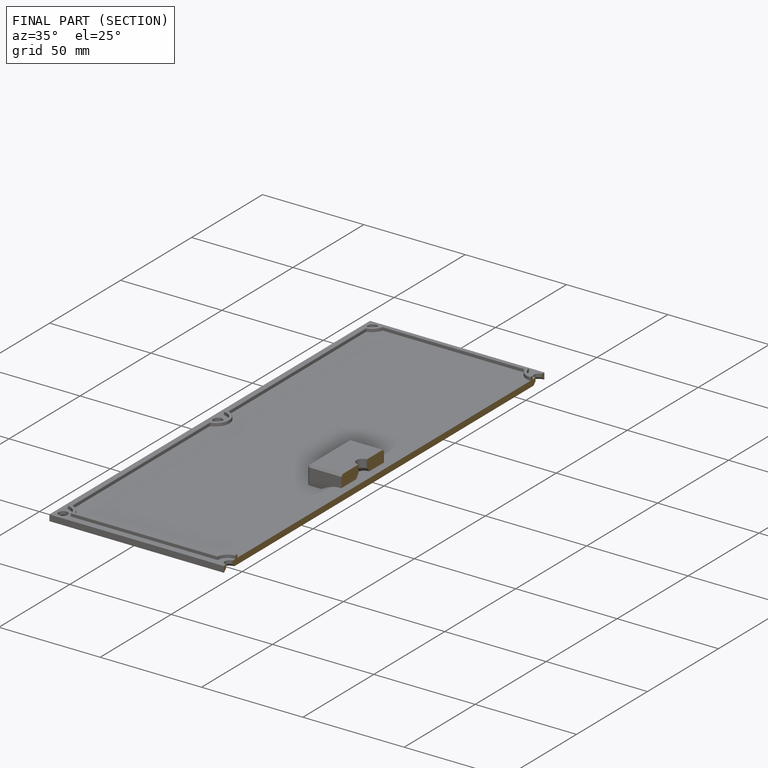
[diagram: finished part — half-section view (interior)]
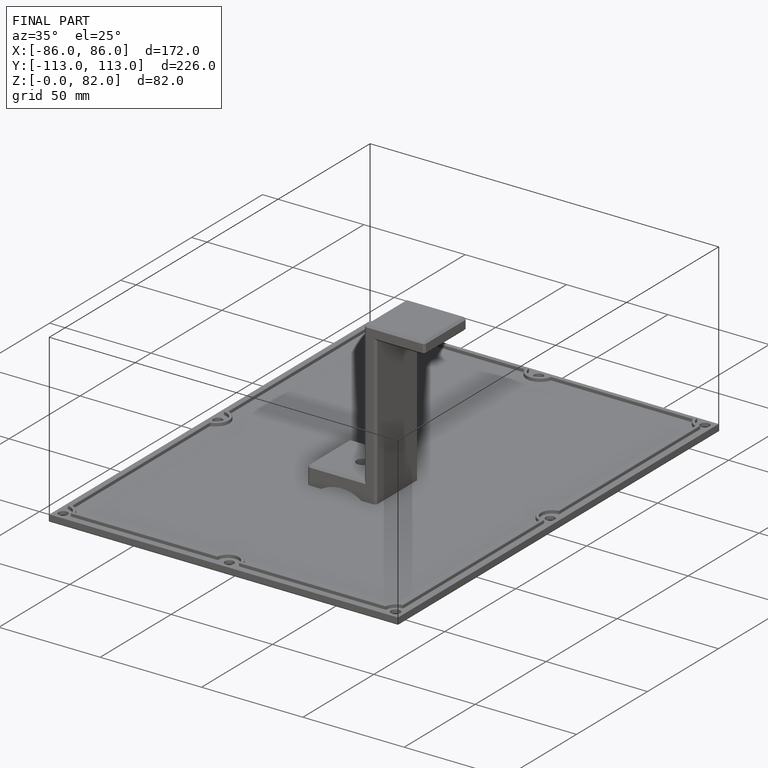
[diagram: finished part — iso view with bounding-box wireframe]
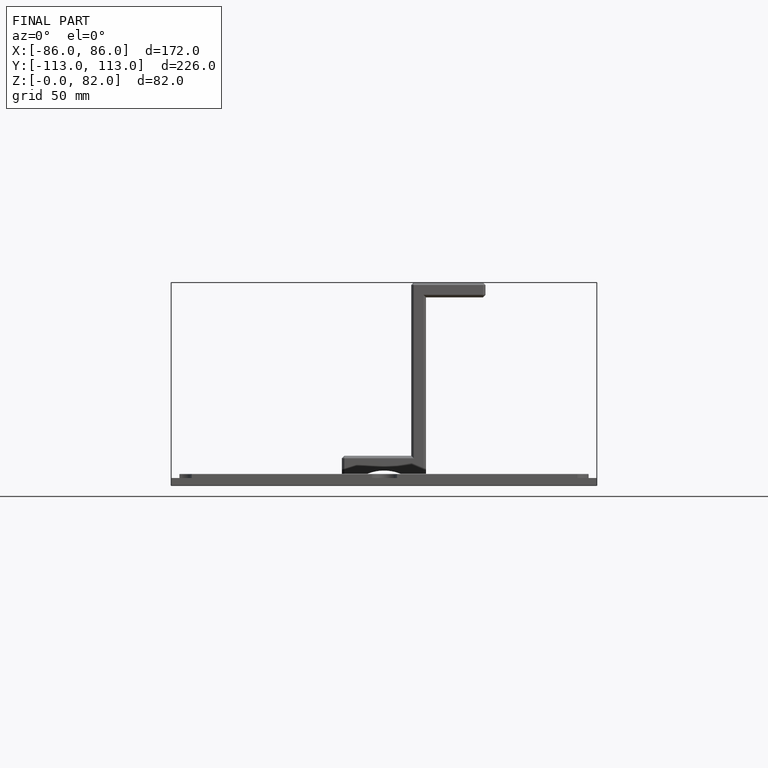
[diagram: finished part — front view with bounding-box wireframe]
